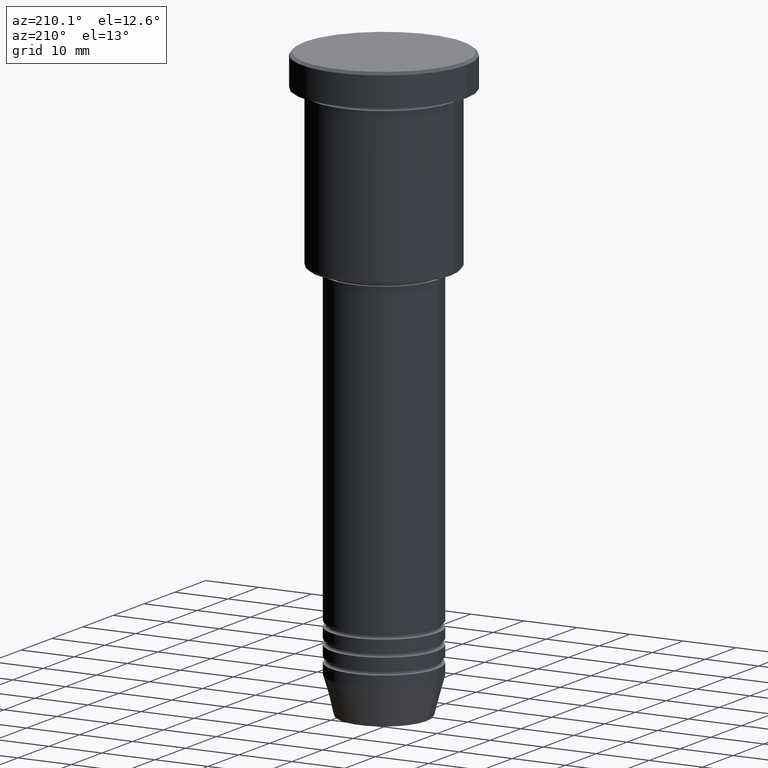
[diagram: clean part render]
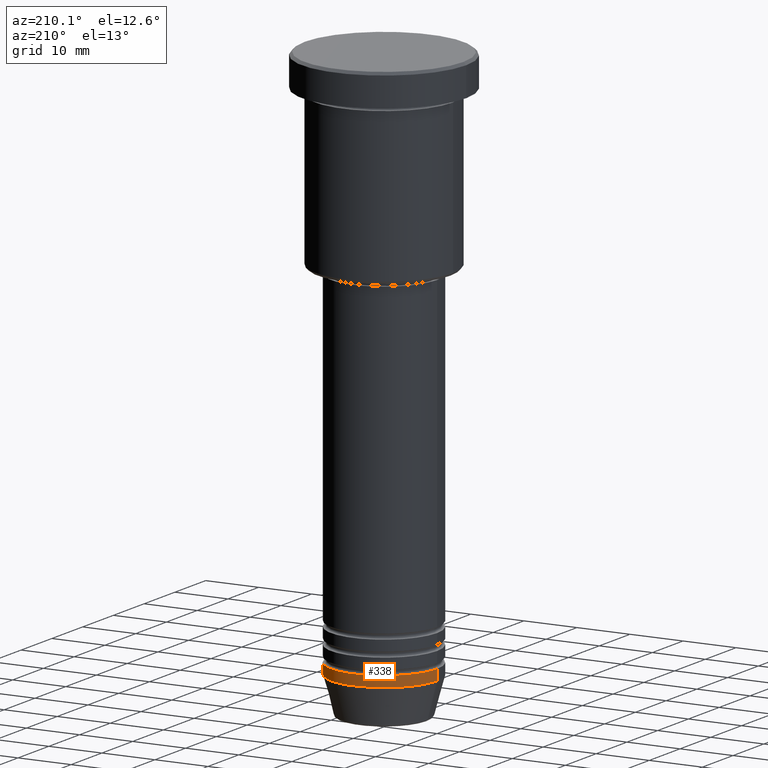
[diagram: same view with one face highlighted and labeled with its STEP entity id]
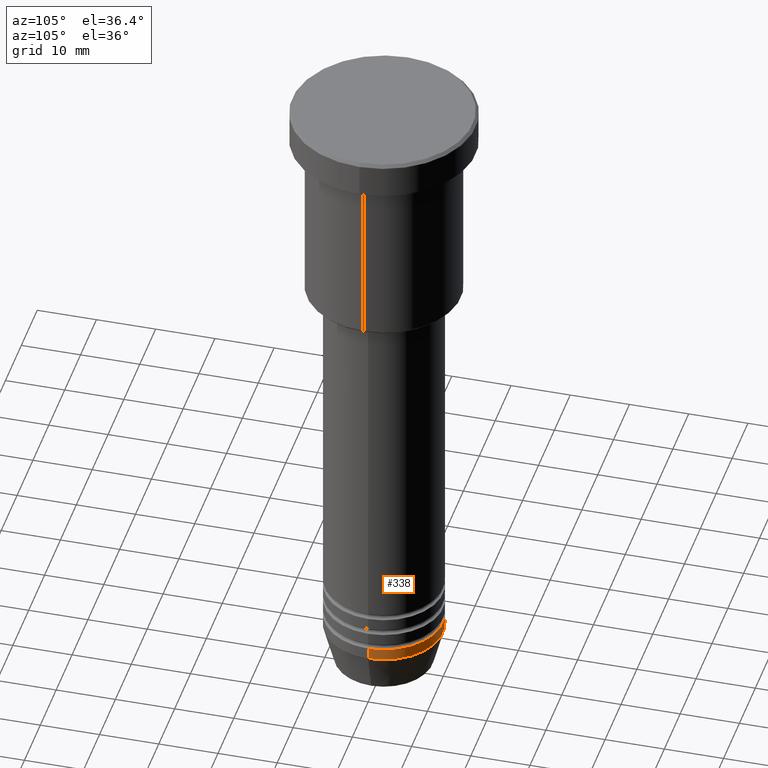
[diagram: same view with one face highlighted and labeled with its STEP entity id]
A machine part, auxiliary view. The second image highlights one B-rep face of the part: STEP entity #338.
A second angle (auxiliary view) of the same face is appended — the face is thin or edge-on in the first view.
In plain terms, the highlighted cylindrical surface (partial cylindrical patch) has radius 10 mm, axis along (-0, -0, 1).
Its self-contained STEP definition (entity closure, byte-faithful):
#15 = CIRCLE ( 'NONE', #1049, 10.00000000000000000 ) ;
#25 = DIRECTION ( 'NONE',  ( -0.000000000000000000, -0.000000000000000000, 1.000000000000000000 ) ) ;
#44 = CARTESIAN_POINT ( 'NONE',  ( -10.00000000000000000, 1.224646799147353256E-15, -104.0000000000000142 ) ) ;
#55 = AXIS2_PLACEMENT_3D ( 'NONE', #704, #598, #1068 ) ;
#143 = EDGE_CURVE ( 'NONE', #387, #1157, #987, .T. ) ;
#174 = CARTESIAN_POINT ( 'NONE',  ( -10.00000000000000000, 1.224646799147353256E-15, 0.000000000000000000 ) ) ;
#207 = LINE ( 'NONE', #844, #714 ) ;
#218 = EDGE_CURVE ( 'NONE', #871, #1153, #207, .T. ) ;
#287 = ORIENTED_EDGE ( 'NONE', *, *, #218, .F. ) ;
#307 = ORIENTED_EDGE ( 'NONE', *, *, #143, .T. ) ;
#338 = ADVANCED_FACE ( 'NONE', ( #678 ), #1047, .T. ) ;
#384 = DIRECTION ( 'NONE',  ( 1.000000000000000000, 0.000000000000000000, 0.000000000000000000 ) ) ;
#387 = VERTEX_POINT ( 'NONE', #44 ) ;
#393 = CIRCLE ( 'NONE', #55, 10.00000000000000000 ) ;
#395 = CARTESIAN_POINT ( 'NONE',  ( 10.00000000000000000, 0.000000000000000000, -102.0000000000000142 ) ) ;
#407 = AXIS2_PLACEMENT_3D ( 'NONE', #856, #25, #660 ) ;
#528 = DIRECTION ( 'NONE',  ( -0.000000000000000000, -0.000000000000000000, 1.000000000000000000 ) ) ;
#569 = DIRECTION ( 'NONE',  ( -0.000000000000000000, -0.000000000000000000, 1.000000000000000000 ) ) ;
#598 = DIRECTION ( 'NONE',  ( -0.000000000000000000, -0.000000000000000000, 1.000000000000000000 ) ) ;
#650 = DIRECTION ( 'NONE',  ( -0.000000000000000000, -0.000000000000000000, 1.000000000000000000 ) ) ;
#660 = DIRECTION ( 'NONE',  ( 1.000000000000000000, 0.000000000000000000, 0.000000000000000000 ) ) ;
#668 = EDGE_LOOP ( 'NONE', ( #1174, #307, #898, #287 ) ) ;
#678 = FACE_OUTER_BOUND ( 'NONE', #668, .T. ) ;
#704 = CARTESIAN_POINT ( 'NONE',  ( 0.000000000000000000, 0.000000000000000000, -104.0000000000000142 ) ) ;
#714 = VECTOR ( 'NONE', #569, 1000.000000000000000 ) ;
#799 = CARTESIAN_POINT ( 'NONE',  ( 10.00000000000000000, 0.000000000000000000, -104.0000000000000142 ) ) ;
#811 = EDGE_CURVE ( 'NONE', #871, #387, #393, .T. ) ;
#844 = CARTESIAN_POINT ( 'NONE',  ( 10.00000000000000000, 0.000000000000000000, 0.000000000000000000 ) ) ;
#856 = CARTESIAN_POINT ( 'NONE',  ( 0.000000000000000000, 0.000000000000000000, 0.000000000000000000 ) ) ;
#871 = VERTEX_POINT ( 'NONE', #799 ) ;
#898 = ORIENTED_EDGE ( 'NONE', *, *, #1097, .F. ) ;
#906 = VECTOR ( 'NONE', #528, 1000.000000000000000 ) ;
#942 = CARTESIAN_POINT ( 'NONE',  ( -10.00000000000000000, 1.224646799147353256E-15, -102.0000000000000142 ) ) ;
#987 = LINE ( 'NONE', #174, #906 ) ;
#1047 = CYLINDRICAL_SURFACE ( 'NONE', #407, 10.00000000000000000 ) ;
#1049 = AXIS2_PLACEMENT_3D ( 'NONE', #1106, #650, #384 ) ;
#1068 = DIRECTION ( 'NONE',  ( 1.000000000000000000, 0.000000000000000000, 0.000000000000000000 ) ) ;
#1097 = EDGE_CURVE ( 'NONE', #1153, #1157, #15, .T. ) ;
#1106 = CARTESIAN_POINT ( 'NONE',  ( 0.000000000000000000, 0.000000000000000000, -102.0000000000000142 ) ) ;
#1153 = VERTEX_POINT ( 'NONE', #395 ) ;
#1157 = VERTEX_POINT ( 'NONE', #942 ) ;
#1174 = ORIENTED_EDGE ( 'NONE', *, *, #811, .T. ) ;